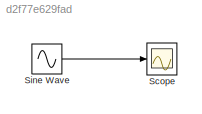
MODEL slx_d2f77e629fad
KIND model
BLOCK [Scope] Scope
  DataFormat = StructureWithTime
  Floating = off
  NumInputPorts = 1
  Ports = [1]
  SampleTime = 0
  ShowLegends = off
  YMax = 1
  YMin = -1
BLOCK [Sin] Sine Wave
  Ports = [0, 1]
  SampleTime = 1/100
  Samples = 50
  SineType = Sample based
LINE Sine Wave:1 -> Scope:1
